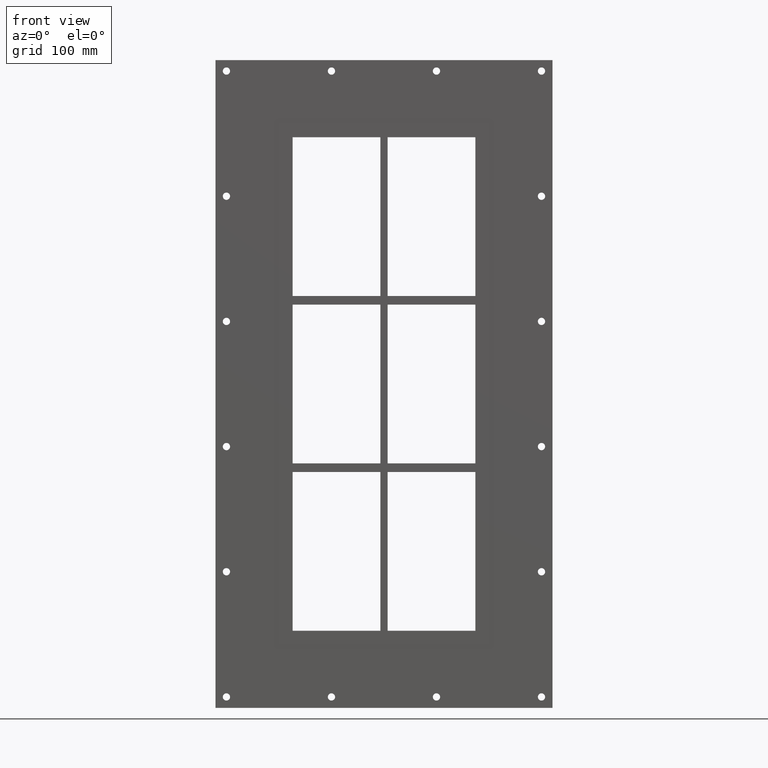
[diagram: clean part render]
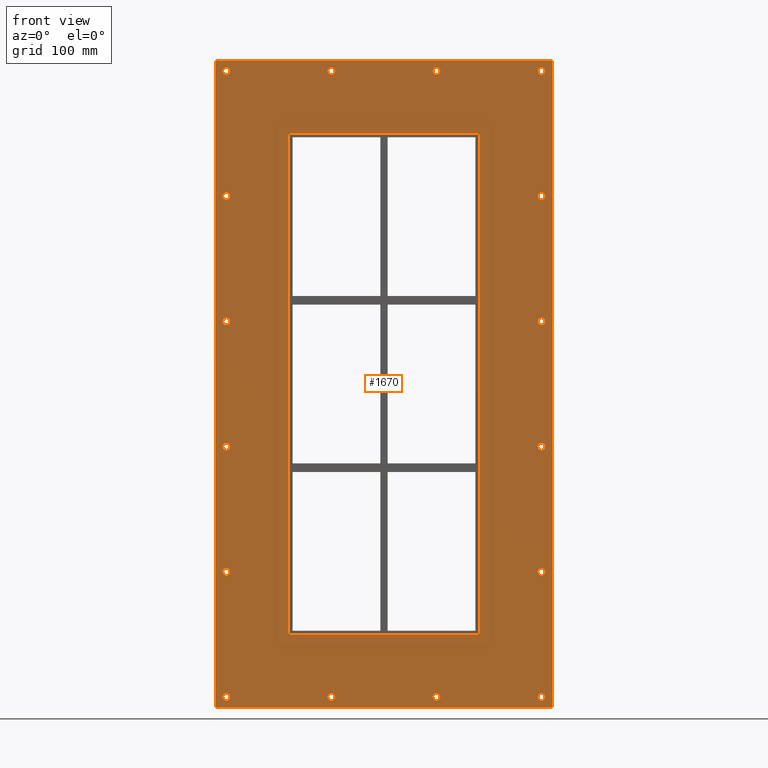
[diagram: same view with one face highlighted and labeled with its STEP entity id]
A machine part, front view. The second image highlights one B-rep face of the part: STEP entity #1670.
In plain terms, the highlighted planar face has unit normal (0, 1, 0).
Its self-contained STEP definition (entity closure, byte-faithful):
#84=CARTESIAN_POINT('',(-211.50000000000006,0.0,-430.00000000000011));
#85=VERTEX_POINT('',#84);
#86=CARTESIAN_POINT('',(-216.50000000000006,0.0,-430.00000000000011));
#87=DIRECTION('',(0.0,1.0,0.0));
#88=DIRECTION('',(1.0,0.0,0.0));
#89=AXIS2_PLACEMENT_3D('',#86,#87,#88);
#90=CIRCLE('',#89,5.0);
#91=EDGE_CURVE('',#85,#85,#90,.T.);
#112=CARTESIAN_POINT('',(221.40000000000001,0.0,-258.00000000000006));
#113=VERTEX_POINT('',#112);
#114=CARTESIAN_POINT('',(216.40000000000001,0.0,-258.00000000000006));
#115=DIRECTION('',(0.0,1.0,0.0));
#116=DIRECTION('',(1.0,0.0,0.0));
#117=AXIS2_PLACEMENT_3D('',#114,#115,#116);
#118=CIRCLE('',#117,5.0);
#119=EDGE_CURVE('',#113,#113,#118,.T.);
#140=CARTESIAN_POINT('',(-211.50000000000006,0.0,-258.00000000000006));
#141=VERTEX_POINT('',#140);
#142=CARTESIAN_POINT('',(-216.50000000000006,0.0,-258.00000000000006));
#143=DIRECTION('',(0.0,1.0,0.0));
#144=DIRECTION('',(1.0,0.0,0.0));
#145=AXIS2_PLACEMENT_3D('',#142,#143,#144);
#146=CIRCLE('',#145,5.0);
#147=EDGE_CURVE('',#141,#141,#146,.T.);
#168=CARTESIAN_POINT('',(221.40000000000001,0.0,-86.000000000000057));
#169=VERTEX_POINT('',#168);
#170=CARTESIAN_POINT('',(216.40000000000001,0.0,-86.000000000000057));
#171=DIRECTION('',(0.0,1.0,0.0));
#172=DIRECTION('',(1.0,0.0,0.0));
#173=AXIS2_PLACEMENT_3D('',#170,#171,#172);
#174=CIRCLE('',#173,5.0);
#175=EDGE_CURVE('',#169,#169,#174,.T.);
#196=CARTESIAN_POINT('',(-211.50000000000006,0.0,-86.000000000000057));
#197=VERTEX_POINT('',#196);
#198=CARTESIAN_POINT('',(-216.50000000000006,0.0,-86.000000000000057));
#199=DIRECTION('',(0.0,1.0,0.0));
#200=DIRECTION('',(1.0,0.0,0.0));
#201=AXIS2_PLACEMENT_3D('',#198,#199,#200);
#202=CIRCLE('',#201,5.0);
#203=EDGE_CURVE('',#197,#197,#202,.T.);
#224=CARTESIAN_POINT('',(221.40000000000001,0.0,85.999999999999872));
#225=VERTEX_POINT('',#224);
#226=CARTESIAN_POINT('',(216.40000000000001,0.0,85.999999999999872));
#227=DIRECTION('',(0.0,1.0,0.0));
#228=DIRECTION('',(1.0,0.0,0.0));
#229=AXIS2_PLACEMENT_3D('',#226,#227,#228);
#230=CIRCLE('',#229,5.0);
#231=EDGE_CURVE('',#225,#225,#230,.T.);
#252=CARTESIAN_POINT('',(-211.50000000000006,0.0,85.999999999999872));
#253=VERTEX_POINT('',#252);
#254=CARTESIAN_POINT('',(-216.50000000000006,0.0,85.999999999999872));
#255=DIRECTION('',(0.0,1.0,0.0));
#256=DIRECTION('',(1.0,0.0,0.0));
#257=AXIS2_PLACEMENT_3D('',#254,#255,#256);
#258=CIRCLE('',#257,5.0);
#259=EDGE_CURVE('',#253,#253,#258,.T.);
#280=CARTESIAN_POINT('',(221.40000000000001,0.0,257.99999999999989));
#281=VERTEX_POINT('',#280);
#282=CARTESIAN_POINT('',(216.40000000000001,0.0,257.99999999999989));
#283=DIRECTION('',(0.0,1.0,0.0));
#284=DIRECTION('',(1.0,0.0,0.0));
#285=AXIS2_PLACEMENT_3D('',#282,#283,#284);
#286=CIRCLE('',#285,5.0);
#287=EDGE_CURVE('',#281,#281,#286,.T.);
#308=CARTESIAN_POINT('',(-211.50000000000006,0.0,257.99999999999989));
#309=VERTEX_POINT('',#308);
#310=CARTESIAN_POINT('',(-216.50000000000006,0.0,257.99999999999989));
#311=DIRECTION('',(0.0,1.0,0.0));
#312=DIRECTION('',(1.0,0.0,0.0));
#313=AXIS2_PLACEMENT_3D('',#310,#311,#312);
#314=CIRCLE('',#313,5.0);
#315=EDGE_CURVE('',#309,#309,#314,.T.);
#336=CARTESIAN_POINT('',(-67.200000000000017,0.0,429.99999999999989));
#337=VERTEX_POINT('',#336);
#338=CARTESIAN_POINT('',(-72.200000000000017,0.0,429.99999999999989));
#339=DIRECTION('',(0.0,1.0,0.0));
#340=DIRECTION('',(1.0,0.0,0.0));
#341=AXIS2_PLACEMENT_3D('',#338,#339,#340);
#342=CIRCLE('',#341,5.0);
#343=EDGE_CURVE('',#337,#337,#342,.T.);
#364=CARTESIAN_POINT('',(-67.200000000000017,0.0,-430.00000000000011));
#365=VERTEX_POINT('',#364);
#366=CARTESIAN_POINT('',(-72.200000000000017,0.0,-430.00000000000011));
#367=DIRECTION('',(0.0,1.0,0.0));
#368=DIRECTION('',(1.0,0.0,0.0));
#369=AXIS2_PLACEMENT_3D('',#366,#367,#368);
#370=CIRCLE('',#369,5.0);
#371=EDGE_CURVE('',#365,#365,#370,.T.);
#392=CARTESIAN_POINT('',(77.099999999999994,0.0,429.99999999999989));
#393=VERTEX_POINT('',#392);
#394=CARTESIAN_POINT('',(72.099999999999994,0.0,429.99999999999989));
#395=DIRECTION('',(0.0,1.0,0.0));
#396=DIRECTION('',(1.0,0.0,0.0));
#397=AXIS2_PLACEMENT_3D('',#394,#395,#396);
#398=CIRCLE('',#397,5.0);
#399=EDGE_CURVE('',#393,#393,#398,.T.);
#420=CARTESIAN_POINT('',(77.099999999999994,0.0,-430.00000000000011));
#421=VERTEX_POINT('',#420);
#422=CARTESIAN_POINT('',(72.099999999999994,0.0,-430.00000000000011));
#423=DIRECTION('',(0.0,1.0,0.0));
#424=DIRECTION('',(1.0,0.0,0.0));
#425=AXIS2_PLACEMENT_3D('',#422,#423,#424);
#426=CIRCLE('',#425,5.0);
#427=EDGE_CURVE('',#421,#421,#426,.T.);
#448=CARTESIAN_POINT('',(221.40000000000001,0.0,-430.00000000000011));
#449=VERTEX_POINT('',#448);
#450=CARTESIAN_POINT('',(216.40000000000001,0.0,-430.00000000000011));
#451=DIRECTION('',(0.0,1.0,0.0));
#452=DIRECTION('',(1.0,0.0,0.0));
#453=AXIS2_PLACEMENT_3D('',#450,#451,#452);
#454=CIRCLE('',#453,5.0);
#455=EDGE_CURVE('',#449,#449,#454,.T.);
#476=CARTESIAN_POINT('',(-211.50000000000006,0.0,429.99999999999989));
#477=VERTEX_POINT('',#476);
#478=CARTESIAN_POINT('',(-216.50000000000006,0.0,429.99999999999989));
#479=DIRECTION('',(0.0,1.0,0.0));
#480=DIRECTION('',(1.0,0.0,0.0));
#481=AXIS2_PLACEMENT_3D('',#478,#479,#480);
#482=CIRCLE('',#481,5.0);
#483=EDGE_CURVE('',#477,#477,#482,.T.);
#504=CARTESIAN_POINT('',(221.40000000000001,0.0,429.99999999999989));
#505=VERTEX_POINT('',#504);
#506=CARTESIAN_POINT('',(216.40000000000001,0.0,429.99999999999989));
#507=DIRECTION('',(0.0,1.0,0.0));
#508=DIRECTION('',(1.0,0.0,0.0));
#509=AXIS2_PLACEMENT_3D('',#506,#507,#508);
#510=CIRCLE('',#509,5.0);
#511=EDGE_CURVE('',#505,#505,#510,.T.);
#1513=CARTESIAN_POINT('',(0.0,0.0,-2.520772E-014));
#1514=DIRECTION('',(0.0,1.0,0.0));
#1515=DIRECTION('',(0.0,0.0,1.0));
#1516=AXIS2_PLACEMENT_3D('',#1513,#1514,#1515);
#1517=PLANE('',#1516);
#1518=CARTESIAN_POINT('',(-231.5,0.0,445.00000000000006));
#1519=VERTEX_POINT('',#1518);
#1520=CARTESIAN_POINT('',(231.5,0.0,445.00000000000006));
#1521=VERTEX_POINT('',#1520);
#1522=CARTESIAN_POINT('',(-231.5,0.0,445.00000000000006));
#1523=DIRECTION('',(1.0,0.0,0.0));
#1524=VECTOR('',#1523,463.0);
#1525=LINE('',#1522,#1524);
#1526=EDGE_CURVE('',#1519,#1521,#1525,.T.);
#1527=ORIENTED_EDGE('',*,*,#1526,.F.);
#1528=CARTESIAN_POINT('',(-231.5,0.0,-445.00000000000011));
#1529=VERTEX_POINT('',#1528);
#1530=CARTESIAN_POINT('',(-231.5,0.0,-445.00000000000011));
#1531=DIRECTION('',(0.0,0.0,1.0));
#1532=VECTOR('',#1531,890.00000000000023);
#1533=LINE('',#1530,#1532);
#1534=EDGE_CURVE('',#1529,#1519,#1533,.T.);
#1535=ORIENTED_EDGE('',*,*,#1534,.F.);
#1536=CARTESIAN_POINT('',(231.5,0.0,-445.00000000000011));
#1537=VERTEX_POINT('',#1536);
#1538=CARTESIAN_POINT('',(231.5,0.0,-445.00000000000011));
#1539=DIRECTION('',(-1.0,0.0,0.0));
#1540=VECTOR('',#1539,463.0);
#1541=LINE('',#1538,#1540);
#1542=EDGE_CURVE('',#1537,#1529,#1541,.T.);
#1543=ORIENTED_EDGE('',*,*,#1542,.F.);
#1544=CARTESIAN_POINT('',(231.5,0.0,445.00000000000006));
#1545=DIRECTION('',(0.0,0.0,-1.0));
#1546=VECTOR('',#1545,890.00000000000023);
#1547=LINE('',#1544,#1546);
#1548=EDGE_CURVE('',#1521,#1537,#1547,.T.);
#1549=ORIENTED_EDGE('',*,*,#1548,.F.);
#1550=EDGE_LOOP('',(#1527,#1535,#1543,#1549));
#1551=FACE_OUTER_BOUND('',#1550,.T.);
#1552=ORIENTED_EDGE('',*,*,#91,.T.);
#1553=EDGE_LOOP('',(#1552));
#1554=FACE_BOUND('',#1553,.T.);
#1555=ORIENTED_EDGE('',*,*,#119,.T.);
#1556=EDGE_LOOP('',(#1555));
#1557=FACE_BOUND('',#1556,.T.);
#1558=ORIENTED_EDGE('',*,*,#147,.T.);
#1559=EDGE_LOOP('',(#1558));
#1560=FACE_BOUND('',#1559,.T.);
#1561=ORIENTED_EDGE('',*,*,#175,.T.);
#1562=EDGE_LOOP('',(#1561));
#1563=FACE_BOUND('',#1562,.T.);
#1564=ORIENTED_EDGE('',*,*,#203,.T.);
#1565=EDGE_LOOP('',(#1564));
#1566=FACE_BOUND('',#1565,.T.);
#1567=ORIENTED_EDGE('',*,*,#231,.T.);
#1568=EDGE_LOOP('',(#1567));
#1569=FACE_BOUND('',#1568,.T.);
#1570=ORIENTED_EDGE('',*,*,#259,.T.);
#1571=EDGE_LOOP('',(#1570));
#1572=FACE_BOUND('',#1571,.T.);
#1573=ORIENTED_EDGE('',*,*,#287,.T.);
#1574=EDGE_LOOP('',(#1573));
#1575=FACE_BOUND('',#1574,.T.);
#1576=ORIENTED_EDGE('',*,*,#315,.T.);
#1577=EDGE_LOOP('',(#1576));
#1578=FACE_BOUND('',#1577,.T.);
#1579=ORIENTED_EDGE('',*,*,#343,.T.);
#1580=EDGE_LOOP('',(#1579));
#1581=FACE_BOUND('',#1580,.T.);
#1582=ORIENTED_EDGE('',*,*,#371,.T.);
#1583=EDGE_LOOP('',(#1582));
#1584=FACE_BOUND('',#1583,.T.);
#1585=ORIENTED_EDGE('',*,*,#399,.T.);
#1586=EDGE_LOOP('',(#1585));
#1587=FACE_BOUND('',#1586,.T.);
#1588=ORIENTED_EDGE('',*,*,#427,.T.);
#1589=EDGE_LOOP('',(#1588));
#1590=FACE_BOUND('',#1589,.T.);
#1591=ORIENTED_EDGE('',*,*,#455,.T.);
#1592=EDGE_LOOP('',(#1591));
#1593=FACE_BOUND('',#1592,.T.);
#1594=ORIENTED_EDGE('',*,*,#483,.T.);
#1595=EDGE_LOOP('',(#1594));
#1596=FACE_BOUND('',#1595,.T.);
#1597=ORIENTED_EDGE('',*,*,#511,.T.);
#1598=EDGE_LOOP('',(#1597));
#1599=FACE_BOUND('',#1598,.T.);
#1600=CARTESIAN_POINT('',(-131.5,0.0,-339.00000000000023));
#1601=VERTEX_POINT('',#1600);
#1602=CARTESIAN_POINT('',(-125.5,0.0,-345.00000000000011));
#1603=VERTEX_POINT('',#1602);
#1604=CARTESIAN_POINT('',(-125.5,0.0,-339.00000000000023));
#1605=DIRECTION('',(0.0,-1.0,0.0));
#1606=DIRECTION('',(-0.707106781186552,0.0,-0.707106781186543));
#1607=AXIS2_PLACEMENT_3D('',#1604,#1605,#1606);
#1608=CIRCLE('',#1607,6.000000000000001);
#1609=EDGE_CURVE('',#1601,#1603,#1608,.T.);
#1610=ORIENTED_EDGE('',*,*,#1609,.F.);
#1611=CARTESIAN_POINT('',(-131.5,0.0,338.99999999999989));
#1612=VERTEX_POINT('',#1611);
#1613=CARTESIAN_POINT('',(-131.5,0.0,338.99999999999994));
#1614=DIRECTION('',(0.0,0.0,-1.0));
#1615=VECTOR('',#1614,678.00000000000011);
#1616=LINE('',#1613,#1615);
#1617=EDGE_CURVE('',#1612,#1601,#1616,.T.);
#1618=ORIENTED_EDGE('',*,*,#1617,.F.);
#1619=CARTESIAN_POINT('',(-125.5,0.0,345.0));
#1620=VERTEX_POINT('',#1619);
#1621=CARTESIAN_POINT('',(-125.5,0.0,338.99999999999989));
#1622=DIRECTION('',(0.0,-1.0,0.0));
#1623=DIRECTION('',(-0.707106781186543,0.0,0.707106781186552));
#1624=AXIS2_PLACEMENT_3D('',#1621,#1622,#1623);
#1625=CIRCLE('',#1624,6.0);
#1626=EDGE_CURVE('',#1620,#1612,#1625,.T.);
#1627=ORIENTED_EDGE('',*,*,#1626,.F.);
#1628=CARTESIAN_POINT('',(125.5,0.0,345.0));
#1629=VERTEX_POINT('',#1628);
#1630=CARTESIAN_POINT('',(125.5,0.0,345.0));
#1631=DIRECTION('',(-1.0,0.0,0.0));
#1632=VECTOR('',#1631,251.0);
#1633=LINE('',#1630,#1632);
#1634=EDGE_CURVE('',#1629,#1620,#1633,.T.);
#1635=ORIENTED_EDGE('',*,*,#1634,.F.);
#1636=CARTESIAN_POINT('',(131.5,0.0,339.0));
#1637=VERTEX_POINT('',#1636);
#1638=CARTESIAN_POINT('',(125.5,0.0,339.0));
#1639=DIRECTION('',(0.0,-1.0,0.0));
#1640=DIRECTION('',(0.707106781186543,0.0,0.707106781186552));
#1641=AXIS2_PLACEMENT_3D('',#1638,#1639,#1640);
#1642=CIRCLE('',#1641,6.0);
#1643=EDGE_CURVE('',#1637,#1629,#1642,.T.);
#1644=ORIENTED_EDGE('',*,*,#1643,.F.);
#1645=CARTESIAN_POINT('',(131.5,0.0,-339.00000000000006));
#1646=VERTEX_POINT('',#1645);
#1647=CARTESIAN_POINT('',(131.5,0.0,-339.00000000000006));
#1648=DIRECTION('',(0.0,0.0,1.0));
#1649=VECTOR('',#1648,678.0);
#1650=LINE('',#1647,#1649);
#1651=EDGE_CURVE('',#1646,#1637,#1650,.T.);
#1652=ORIENTED_EDGE('',*,*,#1651,.F.);
#1653=CARTESIAN_POINT('',(125.5,0.0,-345.00000000000011));
#1654=VERTEX_POINT('',#1653);
#1655=CARTESIAN_POINT('',(125.5,0.0,-339.00000000000006));
#1656=DIRECTION('',(0.0,-1.0,0.0));
#1657=DIRECTION('',(0.707106781186543,0.0,-0.707106781186552));
#1658=AXIS2_PLACEMENT_3D('',#1655,#1656,#1657);
#1659=CIRCLE('',#1658,6.0);
#1660=EDGE_CURVE('',#1654,#1646,#1659,.T.);
#1661=ORIENTED_EDGE('',*,*,#1660,.F.);
#1662=CARTESIAN_POINT('',(-125.5,0.0,-345.00000000000011));
#1663=DIRECTION('',(1.0,0.0,0.0));
#1664=VECTOR('',#1663,251.0);
#1665=LINE('',#1662,#1664);
#1666=EDGE_CURVE('',#1603,#1654,#1665,.T.);
#1667=ORIENTED_EDGE('',*,*,#1666,.F.);
#1668=EDGE_LOOP('',(#1610,#1618,#1627,#1635,#1644,#1652,#1661,#1667));
#1669=FACE_BOUND('',#1668,.T.);
#1670=ADVANCED_FACE('',(#1551,#1554,#1557,#1560,#1563,#1566,#1569,#1572,#1575,#1578,#1581,#1584,#1587,#1590,#1593,#1596,#1599,#1669),#1517,.F.);